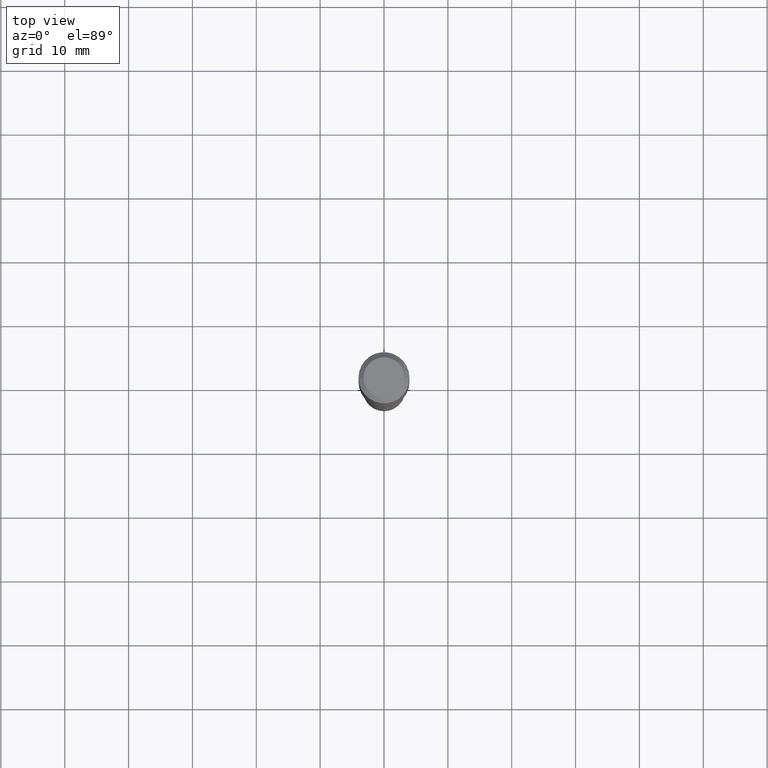
[diagram: clean part render]
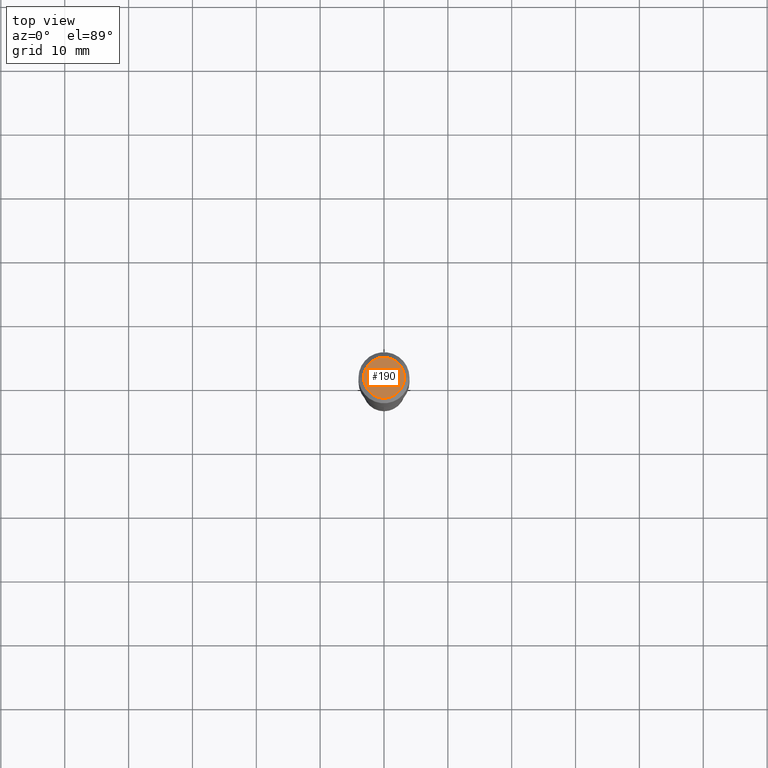
[diagram: same view with one face highlighted and labeled with its STEP entity id]
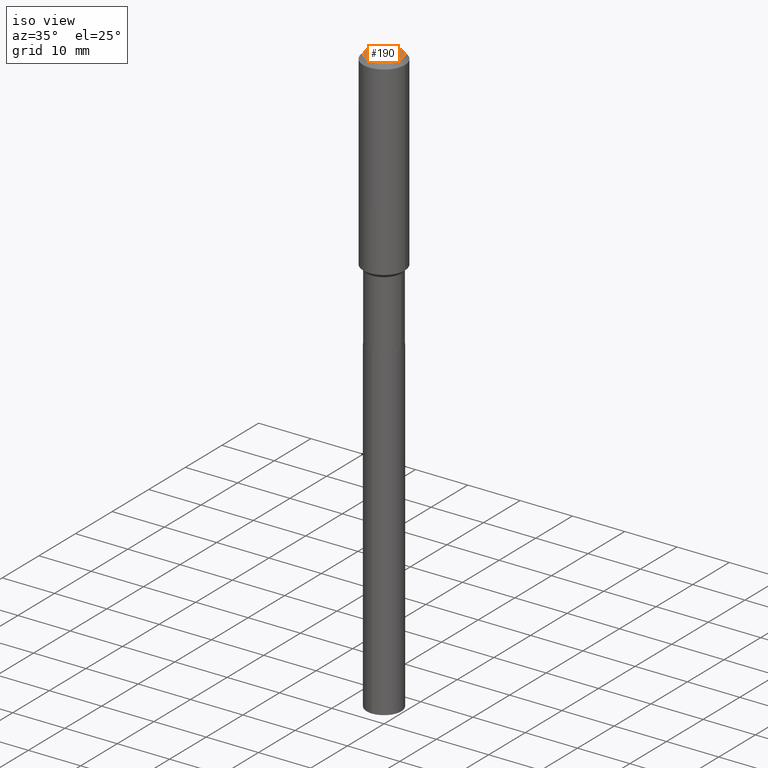
[diagram: same view with one face highlighted and labeled with its STEP entity id]
A machine part, top view. The second image highlights one B-rep face of the part: STEP entity #190.
A second angle (iso view) of the same face is appended — the face is thin or edge-on in the first view.
In plain terms, the highlighted planar face has unit normal (0, -0, -1).
Its self-contained STEP definition (entity closure, byte-faithful):
#1 = CARTESIAN_POINT ( 'NONE',  ( -0.1260000000000000009, 9.348441284752484904E-16, 3.860086710906114178E-18 ) ) ;
#66 = EDGE_CURVE ( 'NONE', #468, #171, #74, .T. ) ;
#67 = DIRECTION ( 'NONE',  ( -2.445468806185136597E-29, 3.491481338843145583E-15, 1.000000000000000000 ) ) ;
#70 = FACE_OUTER_BOUND ( 'NONE', #153, .T. ) ;
#74 = CIRCLE ( 'NONE', #453, 0.1260000000000000009 ) ;
#91 = DIRECTION ( 'NONE',  ( -2.445468806185136597E-29, 3.491481338843145583E-15, 1.000000000000000000 ) ) ;
#101 = AXIS2_PLACEMENT_3D ( 'NONE', #220, #230, #478 ) ;
#139 = PLANE ( 'NONE',  #101 ) ;
#148 = ORIENTED_EDGE ( 'NONE', *, *, #66, .T. ) ;
#153 = EDGE_LOOP ( 'NONE', ( #328, #148 ) ) ;
#157 = CARTESIAN_POINT ( 'NONE',  ( -9.439721640706201686E-47, 1.347742071746726764E-32, 3.860086710912459732E-18 ) ) ;
#171 = VERTEX_POINT ( 'NONE', #1 ) ;
#190 = ADVANCED_FACE ( 'NONE', ( #70 ), #139, .F. ) ;
#211 = CIRCLE ( 'NONE', #473, 0.1260000000000000009 ) ;
#220 = CARTESIAN_POINT ( 'NONE',  ( -4.719860820353100843E-47, 6.738710358733633822E-33, 1.930043355456229866E-18 ) ) ;
#230 = DIRECTION ( 'NONE',  ( 2.438088387897960049E-29, -3.491481338843145188E-15, -1.000000000000000000 ) ) ;
#232 = DIRECTION ( 'NONE',  ( 1.000000000000000000, -6.982962677686265922E-15, 4.876281427513067258E-29 ) ) ;
#246 = EDGE_CURVE ( 'NONE', #171, #468, #211, .T. ) ;
#303 = CARTESIAN_POINT ( 'NONE',  ( 0.1260000000000000009, -1.027466422270894443E-15, 3.860086710919128072E-18 ) ) ;
#306 = DIRECTION ( 'NONE',  ( 1.000000000000000000, -6.982962677686265922E-15, 4.876281427513067258E-29 ) ) ;
#328 = ORIENTED_EDGE ( 'NONE', *, *, #246, .T. ) ;
#357 = CARTESIAN_POINT ( 'NONE',  ( -9.439721640706201686E-47, 1.347742071746726764E-32, 3.860086710912459732E-18 ) ) ;
#453 = AXIS2_PLACEMENT_3D ( 'NONE', #357, #67, #232 ) ;
#468 = VERTEX_POINT ( 'NONE', #303 ) ;
#473 = AXIS2_PLACEMENT_3D ( 'NONE', #157, #91, #306 ) ;
#478 = DIRECTION ( 'NONE',  ( -1.000000000000000000, 6.982962677686265922E-15, -4.876176775795935793E-29 ) ) ;